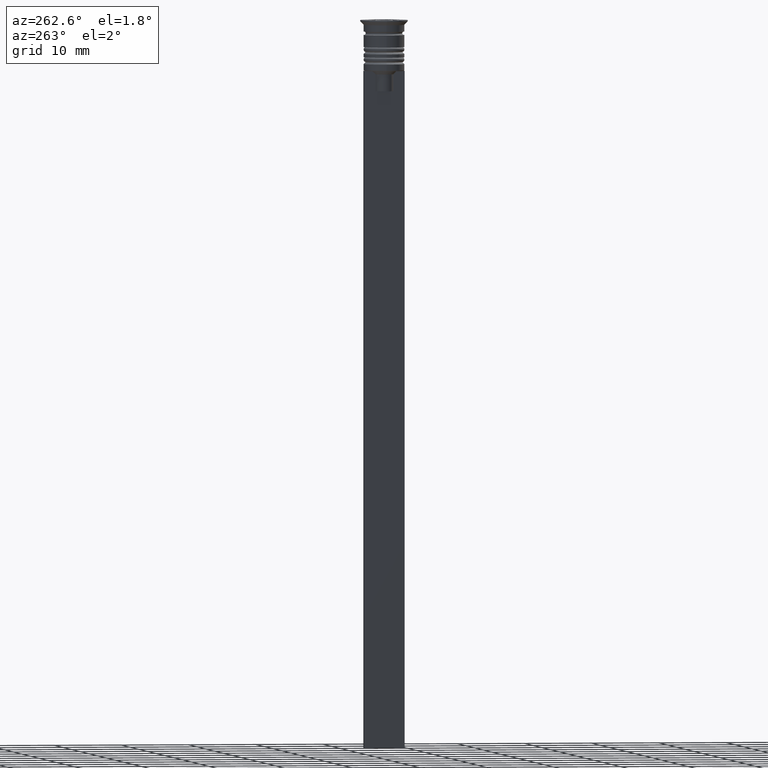
[diagram: clean part render]
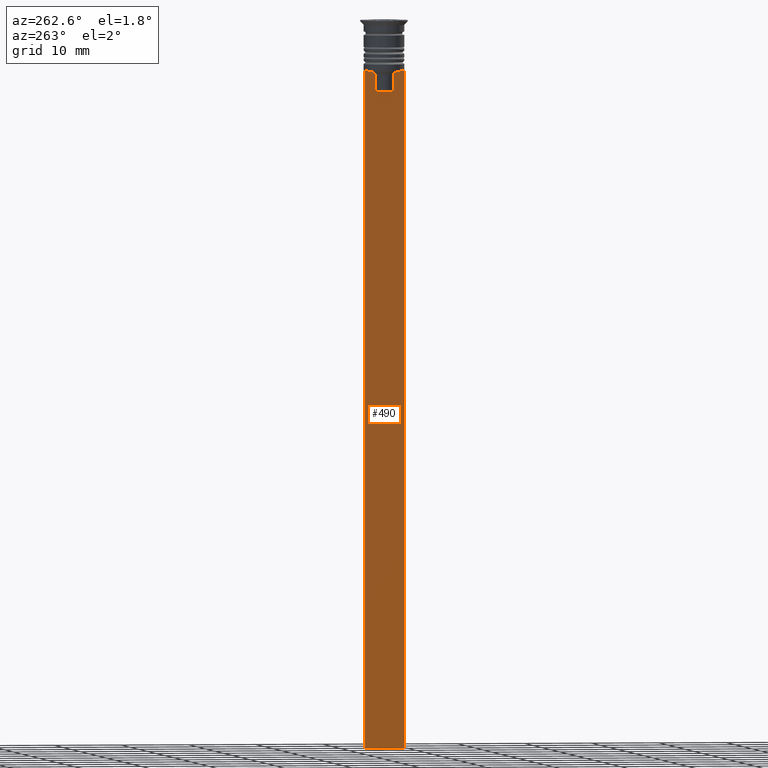
[diagram: same view with one face highlighted and labeled with its STEP entity id]
A machine part, auxiliary view. The second image highlights one B-rep face of the part: STEP entity #490.
In plain terms, the highlighted planar face has unit normal (-1, 0, 0).
Its self-contained STEP definition (entity closure, byte-faithful):
#17 = VECTOR ( 'NONE', #1165, 1000.000000000000000 ) ;
#53 = DIRECTION ( 'NONE',  ( 0.000000000000000000, -1.000000000000000000, 0.000000000000000000 ) ) ;
#69 = CARTESIAN_POINT ( 'NONE',  ( -0.5000000000000001110, 1.659046061654642523, -7.667851756010361619 ) ) ;
#109 = CARTESIAN_POINT ( 'NONE',  ( -0.5000000000000001110, -3.000000000000000000, -1.417237469701779329 ) ) ;
#115 = CARTESIAN_POINT ( 'NONE',  ( -0.5000000000000001110, -3.000000000000000000, -107.5000000000000000 ) ) ;
#127 = VECTOR ( 'NONE', #53, 1000.000000000000000 ) ;
#130 = CARTESIAN_POINT ( 'NONE',  ( -0.5000000000000001110, -3.000000000000000000, -7.500000000000000000 ) ) ;
#218 = CARTESIAN_POINT ( 'NONE',  ( -0.5000000000000001110, -3.000000000000000000, -7.500000000000000000 ) ) ;
#219 = DIRECTION ( 'NONE',  ( 0.000000000000000000, 0.000000000000000000, -1.000000000000000000 ) ) ;
#222 = CARTESIAN_POINT ( 'NONE',  ( -0.5000000000000001110, 1.307669683062199217, -8.000000000000000000 ) ) ;
#223 = LINE ( 'NONE', #130, #2224 ) ;
#227 = CARTESIAN_POINT ( 'NONE',  ( -0.5000000000000001110, 1.307669683062199217, -8.000000000000000000 ) ) ;
#265 = LINE ( 'NONE', #991, #17 ) ;
#367 = VERTEX_POINT ( 'NONE', #1494 ) ;
#373 = CARTESIAN_POINT ( 'NONE',  ( -0.5000000000000001110, 1.833030277982335532, -7.500000000000000000 ) ) ;
#384 = CARTESIAN_POINT ( 'NONE',  ( -0.5000000000000001110, -1.484307477388859153, -7.835011508197190722 ) ) ;
#392 = EDGE_CURVE ( 'NONE', #1492, #1101, #777, .T. ) ;
#396 = CARTESIAN_POINT ( 'NONE',  ( -0.5000000000000001110, -1.833030277982335532, -7.500000000000000000 ) ) ;
#423 = AXIS2_PLACEMENT_3D ( 'NONE', #1216, #871, #636 ) ;
#438 = CARTESIAN_POINT ( 'NONE',  ( -0.5000000000000001110, 1.484355510416485391, -7.834966642958598015 ) ) ;
#488 = CARTESIAN_POINT ( 'NONE',  ( -0.5000000000000001110, -1.833030277982335532, -7.500000000000000000 ) ) ;
#490 = ADVANCED_FACE ( 'NONE', ( #2071 ), #1020, .T. ) ;
#492 = DIRECTION ( 'NONE',  ( 0.000000000000000000, -1.000000000000000000, 0.000000000000000000 ) ) ;
#511 = CARTESIAN_POINT ( 'NONE',  ( -0.5000000000000001110, 1.399999999999997691, -10.49999999999999822 ) ) ;
#547 = EDGE_CURVE ( 'NONE', #680, #914, #1010, .T. ) ;
#574 = VECTOR ( 'NONE', #994, 1000.000000000000000 ) ;
#585 = CARTESIAN_POINT ( 'NONE',  ( -0.5000000000000001110, -1.307669683062199217, -8.000000000000000000 ) ) ;
#636 = DIRECTION ( 'NONE',  ( 0.000000000000000000, 0.000000000000000000, 1.000000000000000000 ) ) ;
#640 = ORIENTED_EDGE ( 'NONE', *, *, #1833, .F. ) ;
#661 = EDGE_CURVE ( 'NONE', #2324, #367, #901, .T. ) ;
#680 = VERTEX_POINT ( 'NONE', #218 ) ;
#692 = CARTESIAN_POINT ( 'NONE',  ( -0.5000000000000001110, -1.307669683062199217, -10.49999999999999822 ) ) ;
#715 = VERTEX_POINT ( 'NONE', #2199 ) ;
#757 = LINE ( 'NONE', #1338, #996 ) ;
#775 = VERTEX_POINT ( 'NONE', #1656 ) ;
#777 = B_SPLINE_CURVE_WITH_KNOTS ( 'NONE', 3,
 ( #1847, #69, #438, #227 ),
 .UNSPECIFIED., .F., .F.,
 ( 4, 4 ),
 ( 0.003278537493109840491, 0.004003794023484932504 ),
 .UNSPECIFIED. ) ;
#787 = DIRECTION ( 'NONE',  ( -0.000000000000000000, -0.000000000000000000, 1.000000000000000000 ) ) ;
#808 = EDGE_CURVE ( 'NONE', #813, #904, #223, .T. ) ;
#813 = VERTEX_POINT ( 'NONE', #1006 ) ;
#823 = ORIENTED_EDGE ( 'NONE', *, *, #1884, .T. ) ;
#832 = DIRECTION ( 'NONE',  ( 0.000000000000000000, 0.000000000000000000, -1.000000000000000000 ) ) ;
#841 = LINE ( 'NONE', #1889, #574 ) ;
#871 = DIRECTION ( 'NONE',  ( -1.000000000000000000, 0.000000000000000000, 0.000000000000000000 ) ) ;
#885 = VECTOR ( 'NONE', #832, 1000.000000000000000 ) ;
#901 = LINE ( 'NONE', #1813, #1031 ) ;
#903 = CARTESIAN_POINT ( 'NONE',  ( -0.5000000000000001110, 1.307669683062199217, 0.000000000000000000 ) ) ;
#904 = VERTEX_POINT ( 'NONE', #1731 ) ;
#910 = B_SPLINE_CURVE_WITH_KNOTS ( 'NONE', 3,
 ( #585, #384, #2040, #396 ),
 .UNSPECIFIED., .F., .F.,
 ( 4, 4 ),
 ( 0.007225659348748070081, 0.007950554640278040958 ),
 .UNSPECIFIED. ) ;
#914 = VERTEX_POINT ( 'NONE', #115 ) ;
#940 = VERTEX_POINT ( 'NONE', #1176 ) ;
#943 = EDGE_CURVE ( 'NONE', #914, #940, #841, .T. ) ;
#991 = CARTESIAN_POINT ( 'NONE',  ( -0.5000000000000001110, -3.000000000000000000, -7.500000000000000000 ) ) ;
#994 = DIRECTION ( 'NONE',  ( 0.000000000000000000, 1.000000000000000000, 0.000000000000000000 ) ) ;
#996 = VECTOR ( 'NONE', #1142, 1000.000000000000000 ) ;
#999 = VECTOR ( 'NONE', #219, 1000.000000000000000 ) ;
#1006 = CARTESIAN_POINT ( 'NONE',  ( -0.5000000000000001110, 3.000000000000000000, -7.500000000000000000 ) ) ;
#1010 = LINE ( 'NONE', #109, #885 ) ;
#1020 = PLANE ( 'NONE',  #423 ) ;
#1030 = EDGE_LOOP ( 'NONE', ( #1349, #1841, #1405, #823, #1600, #1605, #1240, #1411, #1761, #1064, #1386, #640 ) ) ;
#1031 = VECTOR ( 'NONE', #787, 1000.000000000000000 ) ;
#1064 = ORIENTED_EDGE ( 'NONE', *, *, #661, .F. ) ;
#1065 = EDGE_CURVE ( 'NONE', #904, #1492, #757, .T. ) ;
#1083 = EDGE_CURVE ( 'NONE', #775, #680, #2215, .T. ) ;
#1101 = VERTEX_POINT ( 'NONE', #222 ) ;
#1107 = EDGE_CURVE ( 'NONE', #367, #1211, #910, .T. ) ;
#1118 = CARTESIAN_POINT ( 'NONE',  ( -0.5000000000000001110, -3.000000000000000000, -7.500000000000000000 ) ) ;
#1142 = DIRECTION ( 'NONE',  ( 0.000000000000000000, -1.000000000000000000, 0.000000000000000000 ) ) ;
#1165 = DIRECTION ( 'NONE',  ( 0.000000000000000000, -1.000000000000000000, 0.000000000000000000 ) ) ;
#1176 = CARTESIAN_POINT ( 'NONE',  ( -0.5000000000000001110, 3.000000000000000000, -107.5000000000000000 ) ) ;
#1211 = VERTEX_POINT ( 'NONE', #488 ) ;
#1216 = CARTESIAN_POINT ( 'NONE',  ( -0.5000000000000001110, -3.000000000000000000, -1.417237469701779329 ) ) ;
#1240 = ORIENTED_EDGE ( 'NONE', *, *, #1083, .F. ) ;
#1309 = VECTOR ( 'NONE', #1836, 1000.000000000000000 ) ;
#1338 = CARTESIAN_POINT ( 'NONE',  ( -0.5000000000000001110, -3.000000000000000000, -7.500000000000000000 ) ) ;
#1349 = ORIENTED_EDGE ( 'NONE', *, *, #392, .F. ) ;
#1386 = ORIENTED_EDGE ( 'NONE', *, *, #2025, .F. ) ;
#1405 = ORIENTED_EDGE ( 'NONE', *, *, #808, .F. ) ;
#1411 = ORIENTED_EDGE ( 'NONE', *, *, #2243, .F. ) ;
#1419 = LINE ( 'NONE', #1599, #1309 ) ;
#1492 = VERTEX_POINT ( 'NONE', #373 ) ;
#1494 = CARTESIAN_POINT ( 'NONE',  ( -0.5000000000000001110, -1.307669683062199217, -8.000000000000000000 ) ) ;
#1563 = DIRECTION ( 'NONE',  ( 0.000000000000000000, -1.000000000000000000, 0.000000000000000000 ) ) ;
#1599 = CARTESIAN_POINT ( 'NONE',  ( -0.5000000000000001110, 3.000000000000000000, -1.417237469701779329 ) ) ;
#1600 = ORIENTED_EDGE ( 'NONE', *, *, #943, .F. ) ;
#1605 = ORIENTED_EDGE ( 'NONE', *, *, #547, .F. ) ;
#1656 = CARTESIAN_POINT ( 'NONE',  ( -0.5000000000000001110, -2.856571371417139904, -7.500000000000000000 ) ) ;
#1731 = CARTESIAN_POINT ( 'NONE',  ( -0.5000000000000001110, 2.856571371417139904, -7.500000000000000000 ) ) ;
#1761 = ORIENTED_EDGE ( 'NONE', *, *, #1107, .F. ) ;
#1813 = CARTESIAN_POINT ( 'NONE',  ( -0.5000000000000001110, -1.307669683062199217, 0.000000000000000000 ) ) ;
#1833 = EDGE_CURVE ( 'NONE', #1101, #715, #2135, .T. ) ;
#1836 = DIRECTION ( 'NONE',  ( 0.000000000000000000, 0.000000000000000000, -1.000000000000000000 ) ) ;
#1841 = ORIENTED_EDGE ( 'NONE', *, *, #1065, .F. ) ;
#1847 = CARTESIAN_POINT ( 'NONE',  ( -0.5000000000000001110, 1.833030277982335532, -7.500000000000000000 ) ) ;
#1884 = EDGE_CURVE ( 'NONE', #813, #940, #1419, .T. ) ;
#1889 = CARTESIAN_POINT ( 'NONE',  ( -0.5000000000000001110, -3.000000000000000000, -107.5000000000000000 ) ) ;
#1982 = VECTOR ( 'NONE', #1563, 1000.000000000000000 ) ;
#2025 = EDGE_CURVE ( 'NONE', #715, #2324, #2102, .T. ) ;
#2040 = CARTESIAN_POINT ( 'NONE',  ( -0.5000000000000001110, -1.659011726860414093, -7.667884880598472286 ) ) ;
#2071 = FACE_OUTER_BOUND ( 'NONE', #1030, .T. ) ;
#2102 = LINE ( 'NONE', #511, #1982 ) ;
#2135 = LINE ( 'NONE', #903, #999 ) ;
#2199 = CARTESIAN_POINT ( 'NONE',  ( -0.5000000000000001110, 1.307669683062199217, -10.49999999999999822 ) ) ;
#2215 = LINE ( 'NONE', #1118, #127 ) ;
#2224 = VECTOR ( 'NONE', #492, 1000.000000000000000 ) ;
#2243 = EDGE_CURVE ( 'NONE', #1211, #775, #265, .T. ) ;
#2324 = VERTEX_POINT ( 'NONE', #692 ) ;